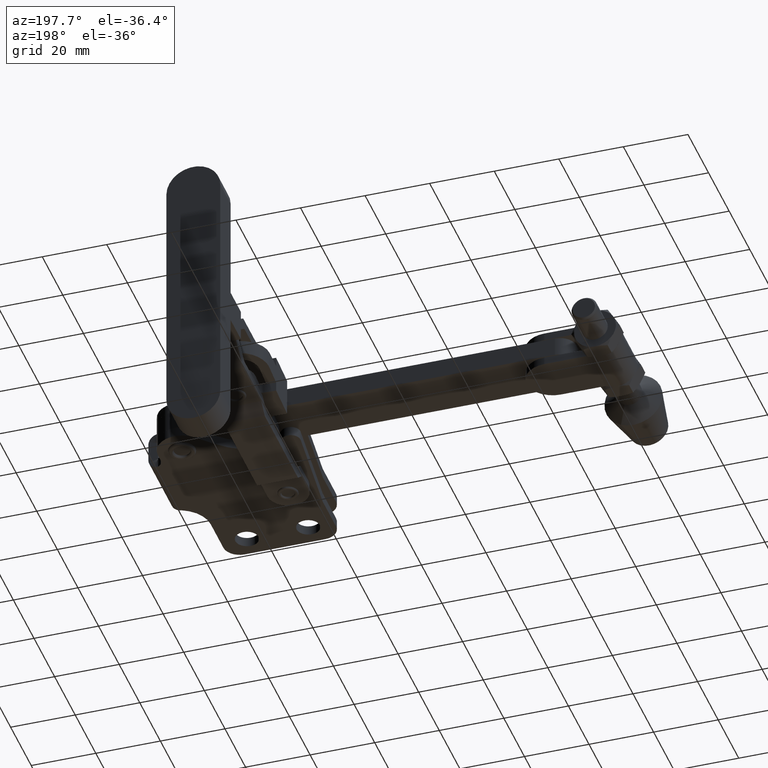
[diagram: clean part render]
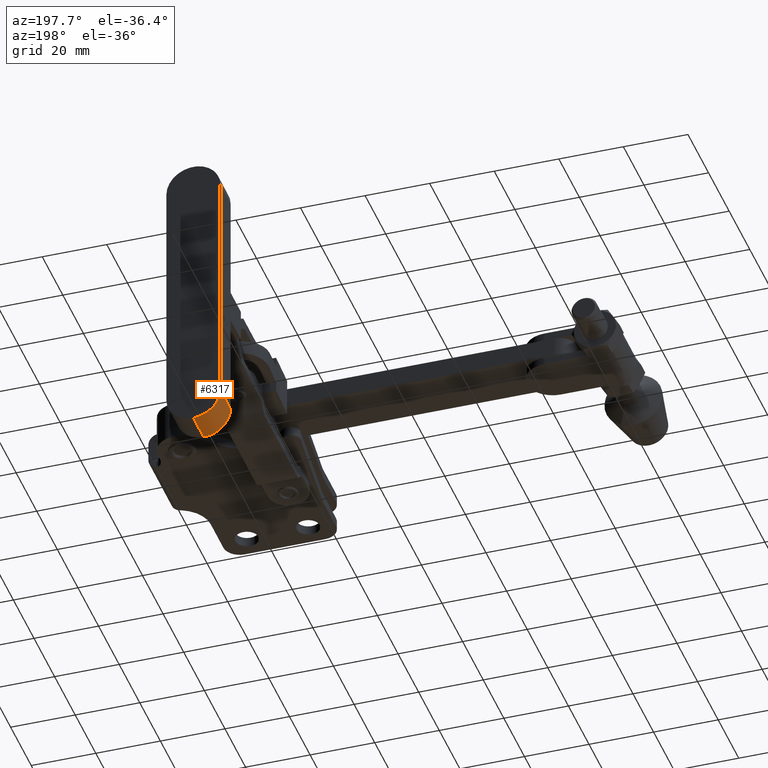
[diagram: same view with one face highlighted and labeled with its STEP entity id]
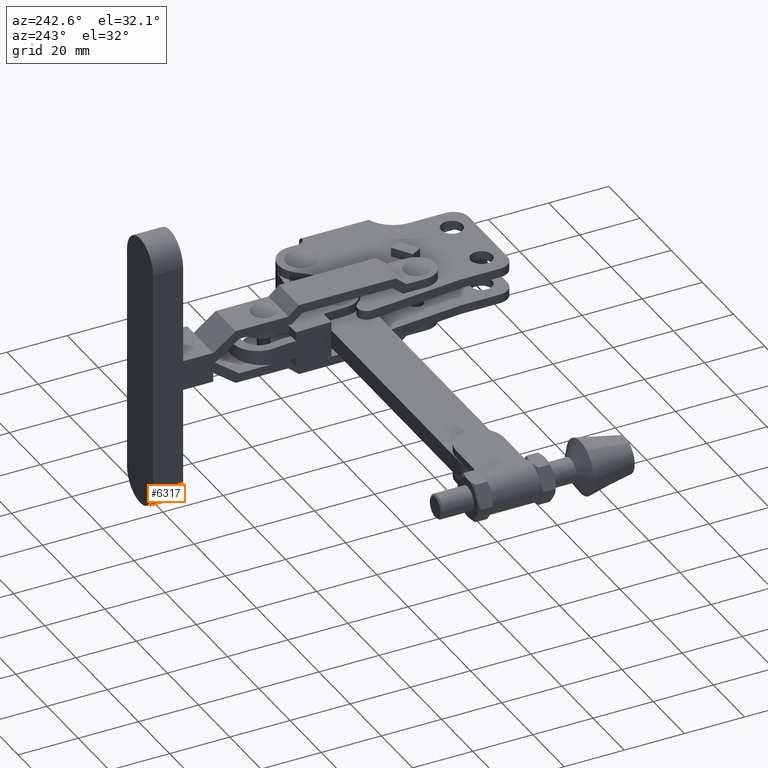
[diagram: same view with one face highlighted and labeled with its STEP entity id]
A machine part, auxiliary view. The second image highlights one B-rep face of the part: STEP entity #6317.
A second angle (auxiliary view) of the same face is appended — the face is thin or edge-on in the first view.
In plain terms, the highlighted cylindrical surface (edge-blend (fillet) strip) has radius 8.35 mm, axis along (-0, 1, -0).
Its self-contained STEP definition (entity closure, byte-faithful):
#659 = CARTESIAN_POINT ( 'NONE',  ( -36.80000000000017500, 105.9999999999998000, -37.65000000000002700 ) ) ;
#699 = CIRCLE ( 'NONE', #9743, 8.350000000000003200 ) ;
#885 = EDGE_CURVE ( 'NONE', #4189, #10194, #1845, .T. ) ;
#1314 = VERTEX_POINT ( 'NONE', #7810 ) ;
#1492 = DIRECTION ( 'NONE',  ( 0.0000000000000000000, -1.662010515905922400E-015, -1.000000000000000000 ) ) ;
#1552 = CARTESIAN_POINT ( 'NONE',  ( -45.15000000000017600, 85.98999999999979600, -37.64999999999997700 ) ) ;
#1793 = ORIENTED_EDGE ( 'NONE', *, *, #8596, .F. ) ;
#1845 = LINE ( 'NONE', #1552, #3789 ) ;
#2033 = VECTOR ( 'NONE', #8189, 1000.000000000000000 ) ;
#2290 = LINE ( 'NONE', #7363, #2033 ) ;
#2555 = CIRCLE ( 'NONE', #10524, 8.350000000000003200 ) ;
#2867 = DIRECTION ( 'NONE',  ( -0.0000000000000000000, -1.000000000000000000, 1.915454074022858400E-020 ) ) ;
#3789 = VECTOR ( 'NONE', #4497, 1000.000000000000000 ) ;
#3854 = FACE_OUTER_BOUND ( 'NONE', #7226, .T. ) ;
#4062 = CARTESIAN_POINT ( 'NONE',  ( -45.15000000000017600, 105.9999999999998000, -37.65000000000002700 ) ) ;
#4189 = VERTEX_POINT ( 'NONE', #6533 ) ;
#4497 = DIRECTION ( 'NONE',  ( -3.836121266936960200E-033, 1.000000000000000000, -2.312983789176260900E-015 ) ) ;
#4559 = CARTESIAN_POINT ( 'NONE',  ( -36.80000000000017500, 85.98999999999979600, -37.64999999999997700 ) ) ;
#5122 = ORIENTED_EDGE ( 'NONE', *, *, #6765, .F. ) ;
#6097 = ORIENTED_EDGE ( 'NONE', *, *, #885, .T. ) ;
#6317 = ADVANCED_FACE ( 'NONE', ( #3854 ), #9466, .T. ) ;
#6499 = DIRECTION ( 'NONE',  ( -3.836121266936960200E-033, 1.000000000000000000, -2.312983789176260900E-015 ) ) ;
#6533 = CARTESIAN_POINT ( 'NONE',  ( -45.15000000000017600, 95.99999999999980100, -37.64999999999999100 ) ) ;
#6765 = EDGE_CURVE ( 'NONE', #4189, #1314, #2555, .T. ) ;
#7226 = EDGE_LOOP ( 'NONE', ( #1793, #5122, #6097, #9864 ) ) ;
#7363 = CARTESIAN_POINT ( 'NONE',  ( -36.80000000000017500, 85.98999999999978200, -45.99999999999997200 ) ) ;
#7417 = EDGE_CURVE ( 'NONE', #8682, #10194, #699, .T. ) ;
#7759 = CARTESIAN_POINT ( 'NONE',  ( -36.80000000000017500, 105.9999999999997900, -46.00000000000002800 ) ) ;
#7810 = CARTESIAN_POINT ( 'NONE',  ( -36.80000000000017500, 95.99999999999980100, -46.00000000000000000 ) ) ;
#7858 = CARTESIAN_POINT ( 'NONE',  ( -36.80000000000017500, 95.99999999999980100, -37.64999999999999900 ) ) ;
#8189 = DIRECTION ( 'NONE',  ( -3.836121266936960200E-033, 1.000000000000000000, -2.312983789176260900E-015 ) ) ;
#8596 = EDGE_CURVE ( 'NONE', #1314, #8682, #2290, .T. ) ;
#8682 = VERTEX_POINT ( 'NONE', #7759 ) ;
#8689 = DIRECTION ( 'NONE',  ( -1.000000000000000000, 0.0000000000000000000, 0.0000000000000000000 ) ) ;
#9451 = DIRECTION ( 'NONE',  ( -3.836121266936960200E-033, 1.000000000000000000, -2.312983789176260900E-015 ) ) ;
#9466 = CYLINDRICAL_SURFACE ( 'NONE', #9852, 8.349999999999996100 ) ;
#9743 = AXIS2_PLACEMENT_3D ( 'NONE', #659, #6499, #1492 ) ;
#9852 = AXIS2_PLACEMENT_3D ( 'NONE', #4559, #9451, #10361 ) ;
#9864 = ORIENTED_EDGE ( 'NONE', *, *, #7417, .F. ) ;
#10194 = VERTEX_POINT ( 'NONE', #4062 ) ;
#10361 = DIRECTION ( 'NONE',  ( 0.0000000000000000000, -1.662010515905923800E-015, -1.000000000000000000 ) ) ;
#10524 = AXIS2_PLACEMENT_3D ( 'NONE', #7858, #2867, #8689 ) ;